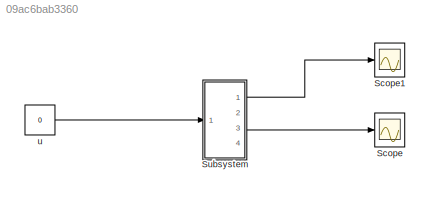
MODEL slx_09ac6bab3360
KIND model
CONFIG AbsTol = auto
CONFIG EnableMultiTasking = off
CONFIG FixedStep = 0.01
CONFIG MaxStep = auto
CONFIG MinStep = auto
CONFIG RelTol = 1e-3
CONFIG SampleTimeConstraint = Unconstrained
CONFIG SolverName = FixedStepAuto
CONFIG StartTime = 0.0
CONFIG StopTime = 5
WORKSPACE source: mxarray member
WORKSPACE I = 0.016
WORKSPACE M = 1
WORKSPACE g = 10
WORKSPACE l = 0.2
WORKSPACE m = 0.3
BLOCK [Scope] Scope
  Floating = off
  NumInputPorts = 1
  Ports = [1]
  ScopeSpecificationString = Simulink.scopes.TimeScopeBlockCfg('CurrentConfiguration', extmgr.ConfigurationSet(extmgr.Configuration('Core','General UI',true),extmgr.Configuration('Core','Source UI',true),extmgr.Configuration('Sources','WiredSimulink',true),extmgr.Configuration('Visuals','Time Domain',true,'SerializedDisplays',{struct('MinYLimReal','-0.13089','MaxYLimReal','6.41402','YLabelReal','','MinYLimMag','0.00000','MaxY...<+1408ch>
BLOCK [Scope] Scope1
  Floating = off
  NumInputPorts = 1
  Ports = [1]
  ScopeSpecificationString = Simulink.scopes.TimeScopeBlockCfg('CurrentConfiguration', extmgr.ConfigurationSet(extmgr.Configuration('Core','General UI',true),extmgr.Configuration('Core','Source UI',true),extmgr.Configuration('Sources','WiredSimulink',true,'DataLoggingVariableName','ScopeData1'),extmgr.Configuration('Visuals','Time Domain',true,'SerializedDisplays',{struct('MinYLimReal','-0.03462','MaxYLimReal','0.08077','YLab...<+1447ch>
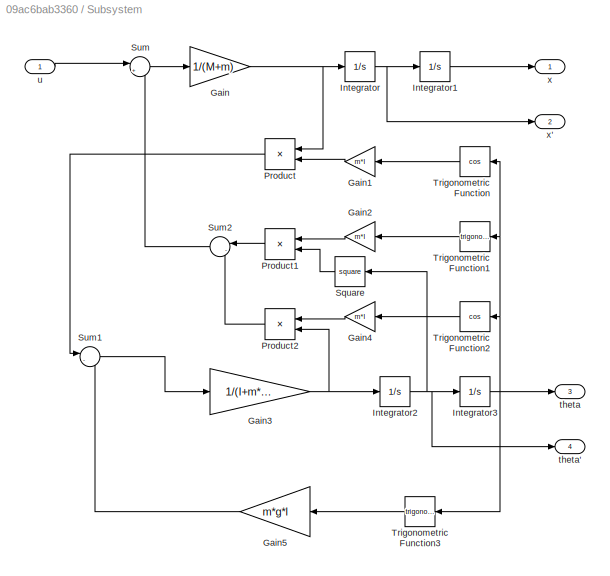
BLOCK [SubSystem] Subsystem
  Ports = [1, 4]
  RequestExecContextInheritance = off
BLOCK [Gain] Subsystem/Gain
  Gain = 1/(M+m)
BLOCK [Gain] Subsystem/Gain1
  Gain = m*l
  NameLocation = top
BLOCK [Gain] Subsystem/Gain2
  Gain = m*l
  NameLocation = top
BLOCK [Gain] Subsystem/Gain3
  Gain = 1/(I+m*l^2)
BLOCK [Gain] Subsystem/Gain4
  Gain = m*l
  NameLocation = top
BLOCK [Gain] Subsystem/Gain5
  Gain = m*g*l
  NameLocation = top
BLOCK [Integrator] Subsystem/Integrator
  Ports = [1, 1]
BLOCK [Integrator] Subsystem/Integrator1
  Ports = [1, 1]
BLOCK [Integrator] Subsystem/Integrator2
  Ports = [1, 1]
BLOCK [Integrator] Subsystem/Integrator3
  InitialCondition = pi/6
  Ports = [1, 1]
BLOCK [Product] Subsystem/Product
  NameLocation = top
  Ports = [2, 1]
BLOCK [Product] Subsystem/Product1
  NameLocation = top
  Ports = [2, 1]
BLOCK [Product] Subsystem/Product2
  NameLocation = top
  Ports = [2, 1]
BLOCK [Math] Subsystem/Square
  NameLocation = top
  Operator = square
  Ports = [1, 1]
BLOCK [Sum] Subsystem/Sum
  Inputs = |+-
  Ports = [2, 1]
BLOCK [Sum] Subsystem/Sum1
  Inputs = |-+
  Ports = [2, 1]
BLOCK [Sum] Subsystem/Sum2
  Inputs = |-+
  NameLocation = top
  Ports = [2, 1]
BLOCK [Trigonometry] Subsystem/Trigonometric Function
  NameLocation = top
  Operator = cos
  Ports = [1, 1]
BLOCK [Trigonometry] Subsystem/Trigonometric Function1
  NameLocation = top
  Ports = [1, 1]
BLOCK [Trigonometry] Subsystem/Trigonometric Function2
  NameLocation = top
  Operator = cos
  Ports = [1, 1]
BLOCK [Trigonometry] Subsystem/Trigonometric Function3
  NameLocation = top
  Ports = [1, 1]
BLOCK [Outport] Subsystem/theta
  Port = 3
BLOCK [Outport] Subsystem/theta'
  Port = 4
BLOCK [Inport] Subsystem/u
BLOCK [Outport] Subsystem/x
BLOCK [Outport] Subsystem/x'
  Port = 2
BLOCK [Constant] u
  Value = 0
LINE Subsystem/Gain1:1 -> Subsystem/Product:2
LINE Subsystem/Gain2:1 -> Subsystem/Product1:1
NET Subsystem/Gain3:1 -> Subsystem/Integrator2:1, Subsystem/Product2:2
LINE Subsystem/Gain4:1 -> Subsystem/Product2:1
LINE Subsystem/Gain5:1 -> Subsystem/Sum1:2
NET Subsystem/Gain:1 -> Subsystem/Integrator:1, Subsystem/Product:1
LINE Subsystem/Integrator1:1 -> Subsystem/x:1
NET Subsystem/Integrator2:1 -> Subsystem/Integrator3:1, Subsystem/Square:1, Subsystem/theta':1
NET Subsystem/Integrator3:1 -> Subsystem/Trigonometric Function1:1, Subsystem/Trigonometric Function2:1, Subsystem/Trigonometric Function3:1, Subsystem/Trigonometric Function:1, Subsystem/theta:1
NET Subsystem/Integrator:1 -> Subsystem/Integrator1:1, Subsystem/x':1
LINE Subsystem/Product1:1 -> Subsystem/Sum2:1
LINE Subsystem/Product2:1 -> Subsystem/Sum2:2
LINE Subsystem/Product:1 -> Subsystem/Sum1:1
LINE Subsystem/Square:1 -> Subsystem/Product1:2
LINE Subsystem/Sum1:1 -> Subsystem/Gain3:1
LINE Subsystem/Sum2:1 -> Subsystem/Sum:2
LINE Subsystem/Sum:1 -> Subsystem/Gain:1
LINE Subsystem/Trigonometric Function1:1 -> Subsystem/Gain2:1
LINE Subsystem/Trigonometric Function2:1 -> Subsystem/Gain4:1
LINE Subsystem/Trigonometric Function3:1 -> Subsystem/Gain5:1
LINE Subsystem/Trigonometric Function:1 -> Subsystem/Gain1:1
LINE Subsystem/u:1 -> Subsystem/Sum:1
LINE Subsystem:1 -> Scope1:1
LINE Subsystem:3 -> Scope:1
LINE u:1 -> Subsystem:1
note: NET lines group one-source signal fan-out (src -> all destinations, sorted); 1:1 wires keep LINE
